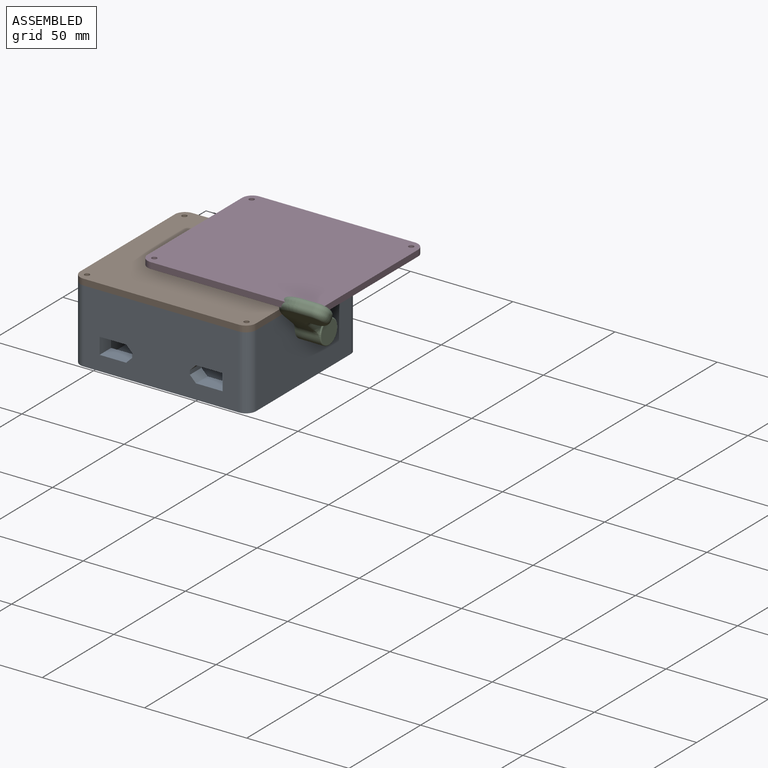
[diagram: assembled view]
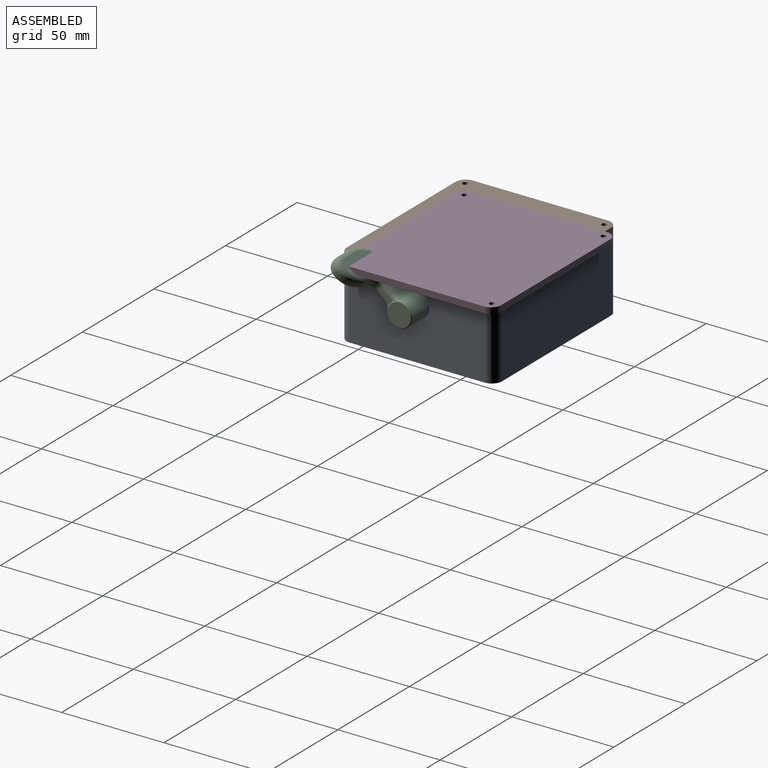
[diagram: assembled view, second angle]
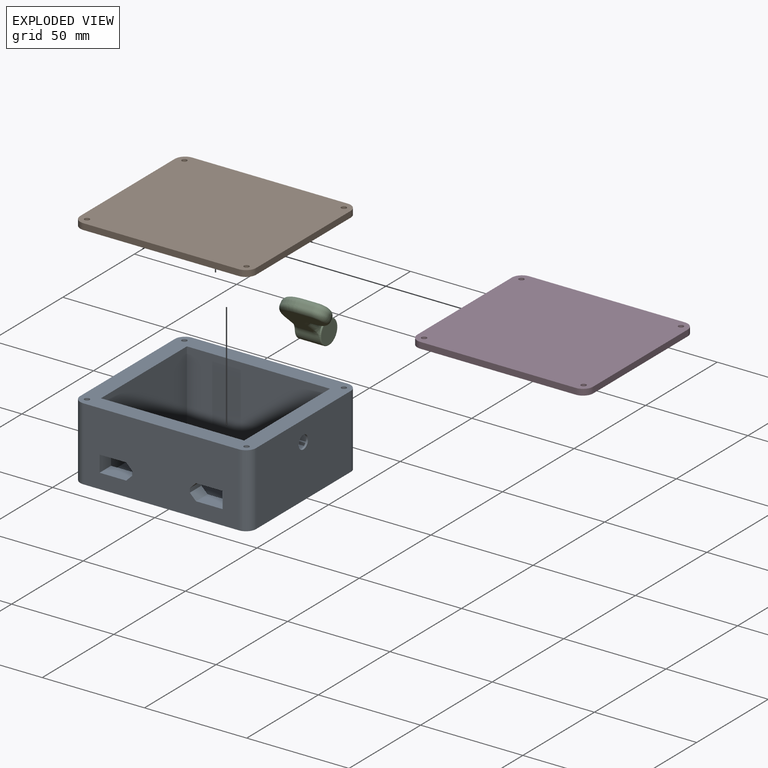
[diagram: exploded view]
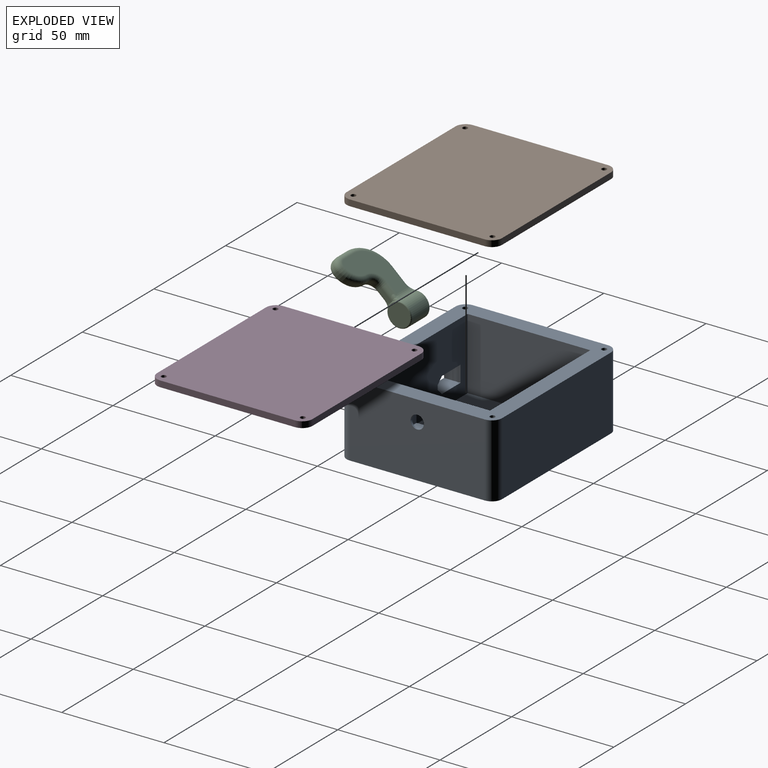
[diagram: exploded view, second angle]
ASSEMBLY  parts=3 mates=2
PART A: 45 faces, bbox 86x76x35.8 mm
  f0: plane 60x35mm, normal (-1,0,0), area 1973mm2, adj f3,f7,f9,f22,f23,f24,f25,f26
  f1: cylinder r=3.25mm len=6.5mm, axis (1,0,0), area 20.4mm2, adj f5,f30
  f2: plane 76x35.8mm, normal (0,-1,0), area 2482.8mm2, adj f9,f10,f11,f12,f13,f14,f15,f16
  f3: plane 70x35mm, normal (0,1,0), area 2212mm2, adj f0,f6,f9,f10,f11,f12,f13,f14
  f4: plane 66x35.8mm, normal (-1,0,0), area 2362.8mm2, adj f9,f32,f41,f44
  f5: plane 66x35.8mm, normal (1,0,0), area 2329.6mm2, adj f1,f9,f32,f42,f43
  f6: plane 60x35mm, normal (1,0,0), area 2100mm2, adj f3,f7,f9,f31
  f7: plane 70x35mm, normal (0,-1,0), area 2450mm2, adj f0,f6,f9,f31
  f8: plane 76x35.8mm, normal (0,1,0), area 2720.8mm2, adj f9,f32,f43,f44
  f9: plane 86x76mm, normal (0,0,1), area 2294.9mm2, adj f0,f2,f3,f4,f5,f6,f7,f8
  f10: plane 8x2mm, normal (-1,0,0), area 16mm2, adj f2,f3,f18,f19
  f11: plane 13x8mm, normal (0,0,-1), area 104mm2, adj f2,f3,f12,f18
  f12: plane 8x8mm, normal (1,0,0), area 64mm2, adj f2,f3,f11,f13
  f13: plane 13x8mm, normal (0,0,1), area 104mm2, adj f2,f3,f12,f19
  f14: plane 13x8mm, normal (0,0,-1), area 104mm2, adj f2,f3,f17,f21
  f15: plane 8x2mm, normal (1,0,0), area 16mm2, adj f2,f3,f20,f21
  f16: plane 13x8mm, normal (0,0,1), area 104mm2, adj f2,f3,f17,f20
  f17: plane 8x8mm, normal (-1,0,0), area 64mm2, adj f2,f3,f14,f16
  f18: plane 8x3mm, normal (-0.71,0,-0.71), area 33.9mm2, adj f2,f3,f10,f11
  f19: plane 8x3mm, normal (-0.71,0,0.71), area 33.9mm2, adj f2,f3,f10,f13
  f20: plane 8x3mm, normal (0.71,0,0.71), area 33.9mm2, adj f2,f3,f15,f16
  f21: plane 8x3mm, normal (0.71,0,-0.71), area 33.9mm2, adj f2,f3,f14,f15
  f22: plane 12x7mm, normal (0,0,1), area 84mm2, adj f0,f23,f29,f30
  f23: plane 10x7mm, normal (0,1,0), area 70mm2, adj f0,f22,f24,f30
  f24: plane 12x7mm, normal (0,0,-1), area 84mm2, adj f0,f23,f25,f30
  f25: plane 7x1.5mm, normal (0,-1,0), area 10.5mm2, adj f0,f24,f26,f30
  f26: plane 7x1mm, normal (0,0,-1), area 7mm2, adj f0,f25,f27,f30
  f27: plane 7x7mm, normal (0,-1,0), area 49mm2, adj f0,f26,f28,f30
  f28: plane 7x1mm, normal (0,0,1), area 7mm2, adj f0,f27,f29,f30
  f29: plane 7x1.5mm, normal (0,-1,0), area 10.5mm2, adj f0,f22,f28,f30
  f30: plane 13x10mm, normal (-1,0,0), area 93.8mm2, adj f1,f22,f23,f24,f25,f26,f27,f28
  f31: plane 70x60mm, normal (0,0,1), area 4200mm2, adj f0,f3,f6,f7
  f32: plane 86x76mm, normal (0,0,-1), area 6514.5mm2, adj f2,f4,f5,f8,f41,f42,f43,f44
  f33: cone r=0mm half-angle=59deg, axis (0,0,1), area 5.7mm2, adj f34
  f34: cylinder r=1.25mm len=15mm, axis (0,0,1), area 117.8mm2, adj f9,f33
  f35: cone r=0mm half-angle=59deg, axis (0,0,1), area 5.7mm2, adj f36
  f36: cylinder r=1.25mm len=15mm, axis (0,0,1), area 117.8mm2, adj f9,f35
  f37: cone r=0mm half-angle=59deg, axis (0,0,1), area 5.7mm2, adj f38
  f38: cylinder r=1.25mm len=15mm, axis (0,0,1), area 117.8mm2, adj f9,f37
  f39: cone r=0mm half-angle=59deg, axis (0,0,1), area 5.7mm2, adj f40
  f40: cylinder r=1.25mm len=15mm, axis (0,0,1), area 117.8mm2, adj f9,f39
  f41: cylinder r=5mm len=35.8mm, axis (0,0,-1), area 281.2mm2, adj f2,f4,f9,f32
  f42: cylinder r=5mm len=35.8mm, axis (0,0,1), area 281.2mm2, adj f2,f5,f9,f32
  f43: cylinder r=5mm len=35.8mm, axis (0,0,-1), area 281.2mm2, adj f5,f8,f9,f32
  f44: cylinder r=5mm len=35.8mm, axis (0,0,1), area 281.2mm2, adj f4,f8,f9,f32
PART B: 14 faces, bbox 86x76x3 mm
  f0: plane 66x3mm, normal (1,0,0), area 198mm2, adj f4,f5,f6,f9
  f1: plane 76x3mm, normal (0,1,0), area 228mm2, adj f4,f5,f6,f7
  f2: plane 66x3mm, normal (-1,0,0), area 198mm2, adj f4,f5,f7,f8
  f3: plane 76x3mm, normal (0,-1,0), area 228mm2, adj f4,f5,f8,f9
  f4: plane 86x76mm, normal (0,0,1), area 6494.9mm2, adj f0,f1,f2,f3,f6,f7,f8,f9
  f5: plane 86x76mm, normal (0,0,-1), area 6494.9mm2, adj f0,f1,f2,f3,f6,f7,f8,f9
  f6: cylinder r=5mm len=5mm, axis (0,0,-1), area 23.6mm2, adj f0,f1,f4,f5
  f7: cylinder r=5mm len=5mm, axis (0,0,1), area 23.6mm2, adj f1,f2,f4,f5
  f8: cylinder r=5mm len=5mm, axis (0,0,-1), area 23.6mm2, adj f2,f3,f4,f5
  f9: cylinder r=5mm len=5mm, axis (0,0,1), area 23.6mm2, adj f0,f3,f4,f5
  f10: cylinder r=1.25mm len=3mm, axis (0,0,-1), area 23.6mm2, adj f4,f5
  f11: cylinder r=1.25mm len=3mm, axis (0,0,-1), area 23.6mm2, adj f4,f5
  f12: cylinder r=1.25mm len=3mm, axis (0,0,-1), area 23.6mm2, adj f4,f5
  f13: cylinder r=1.25mm len=3mm, axis (0,0,-1), area 23.6mm2, adj f4,f5
PART C: 38 faces, bbox 32.8x13x40.7 mm
  f0: cylinder r=3mm len=10mm, axis (-1,0,0), area 188.5mm2, adj f34,f35
  f1: cylinder r=6mm len=12.1mm, axis (-1,0,0), area 335.7mm2, adj f2,f25,f26,f27,f28,f29,f30,f31
  f2: plane 24x12mm, normal (-1,0,0), area 65.4mm2, adj f1,f7,f17,f24,f25,f33,f34
  f3: plane 23.2x21.98mm, normal (0,1,0), area 277mm2, adj f18,f19,f20,f21,f22,f23,f24,f32
  f4: plane 23.2x21.98mm, normal (0,-1,0), area 277mm2, adj f11,f12,f13,f14,f15,f16,f17,f26
  f5: plane 6.58x1.45mm, normal (1,0,0), area 9.5mm2, adj f8,f11,f18,f29
  f6: plane 6.98x1.45mm, normal (0,0,1), area 10.1mm2, adj f7,f9,f15,f22
  f7: cylinder r=15mm len=15mm, axis (0,-1,0), area 34.2mm2, adj f2,f6,f16,f23
  f8: cylinder r=5mm len=5mm, axis (0,1,0), area 11.4mm2, adj f5,f10,f12,f19
  f9: cylinder r=5mm len=5mm, axis (0,-1,0), area 11.4mm2, adj f6,f10,f14,f21
  f10: cylinder r=10mm len=10mm, axis (0,-1,0), area 22.8mm2, adj f8,f9,f13,f20
  f11: cylinder r=2.5mm len=6.59mm, axis (0,0,1), area 21.1mm2, adj f4,f5,f12,f27,f28
  f12: torus R=7.5mm, axis (0,1,0), area 36.4mm2, adj f4,f8,f11,f13
  f13: torus R=7.5mm, axis (0,1,0), area 56.1mm2, adj f4,f10,f12,f14
  f14: torus R=2.5mm, axis (0,1,0), area 25.2mm2, adj f4,f9,f13,f15
  f15: cylinder r=2.5mm len=6.98mm, axis (-1,0,0), area 27.4mm2, adj f4,f6,f14,f16
  f16: torus R=12.5mm, axis (0,1,0), area 86.9mm2, adj f4,f7,f15,f17
  f17: cylinder r=2.5mm len=10.7mm, axis (0,0,-1), area 34.8mm2, adj f2,f4,f16,f25
  f18: cylinder r=2.5mm len=6.59mm, axis (0,0,-1), area 21.1mm2, adj f3,f5,f19,f30,f31
  f19: torus R=7.5mm, axis (0,1,0), area 36.4mm2, adj f3,f8,f18,f20
  f20: torus R=7.5mm, axis (0,1,0), area 56.1mm2, adj f3,f10,f19,f21
  f21: torus R=2.5mm, axis (0,1,0), area 25.2mm2, adj f3,f9,f20,f22
  f22: cylinder r=2.5mm len=6.98mm, axis (1,0,0), area 27.4mm2, adj f3,f6,f21,f23
  f23: torus R=12.5mm, axis (0,1,0), area 86.9mm2, adj f3,f7,f22,f24
  f24: cylinder r=2.5mm len=10.7mm, axis (0,0,1), area 34.8mm2, adj f2,f3,f23,f33
  f25: bspline ~8.8x7.02mm, area 13.8mm2, adj f1,f2,f17,f26
  f26: cylinder r=5mm len=6.98mm, axis (-1,0,0), area 25.3mm2, adj f1,f4,f25,f27
  f27: bspline ~4.5x4.02mm, area 6.5mm2, adj f1,f11,f26,f28
  f28: bspline ~4.17x3.83mm, area 6.9mm2, adj f1,f11,f27,f29
  f29: torus R=6.46mm, axis (1,0,0), area 0.6mm2, adj f1,f5,f28,f30
  f30: bspline ~4.17x3.83mm, area 6.9mm2, adj f1,f18,f29,f31
  f31: bspline ~4.64x4.07mm, area 6.5mm2, adj f1,f18,f30,f32
  f32: cylinder r=5mm len=6.98mm, axis (-1,0,0), area 25.3mm2, adj f1,f3,f31,f33
  f33: bspline ~8.8x7.02mm, area 13.8mm2, adj f1,f2,f24,f32
  f34: cone r=5mm half-angle=45deg, axis (-1,0,0), area 71.1mm2, adj f0,f2
  f35: plane 6x6mm, normal (-1,0,0), area 28.3mm2, adj f0
  f36: plane 11x11mm, normal (1,0,0), area 95mm2, adj f37
  f37: torus R=5.5mm, axis (1,0,0), area 28.7mm2, adj f1,f36
PLACE A t=(-0.71,-6.57,-2.95)mm fixed
PLACE B t=(-0.71,-6.57,-17.95)mm
PLACE C rot(axis=(1,0,0),48.1deg) t=(42.29,-6.57,22.05)mm
MATE revolute C.f0 <-> A.f1  axis (-1,0,0) through (42.29,-6.57,22.05)mm
MATE planar B.f5 <-> A.f9  axis (0,0,-1) through (-0.71,-6.57,32.05)mm
